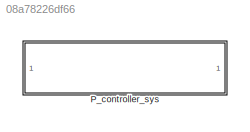
MODEL slx_08a78226df66
KIND library
CONFIG AbsTol = auto
CONFIG EnableMultiTasking = off
CONFIG FixedStep = auto
CONFIG MaxStep = auto
CONFIG MinStep = auto
CONFIG RelTol = 1e-3
CONFIG SampleTimeConstraint = Unconstrained
CONFIG SolverName = VariableStepAuto
CONFIG StartTime = 0.0
CONFIG StopTime = 10.0
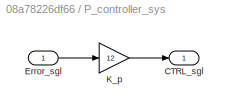
BLOCK [SubSystem] P_controller_sys
BLOCK [Outport] P_controller_sys/CTRL_sgl
BLOCK [Inport] P_controller_sys/Error_sgl
BLOCK [Gain] P_controller_sys/K_p
  Gain = 12
LINE P_controller_sys/Error_sgl:1 -> P_controller_sys/K_p:1
LINE P_controller_sys/K_p:1 -> P_controller_sys/CTRL_sgl:1
